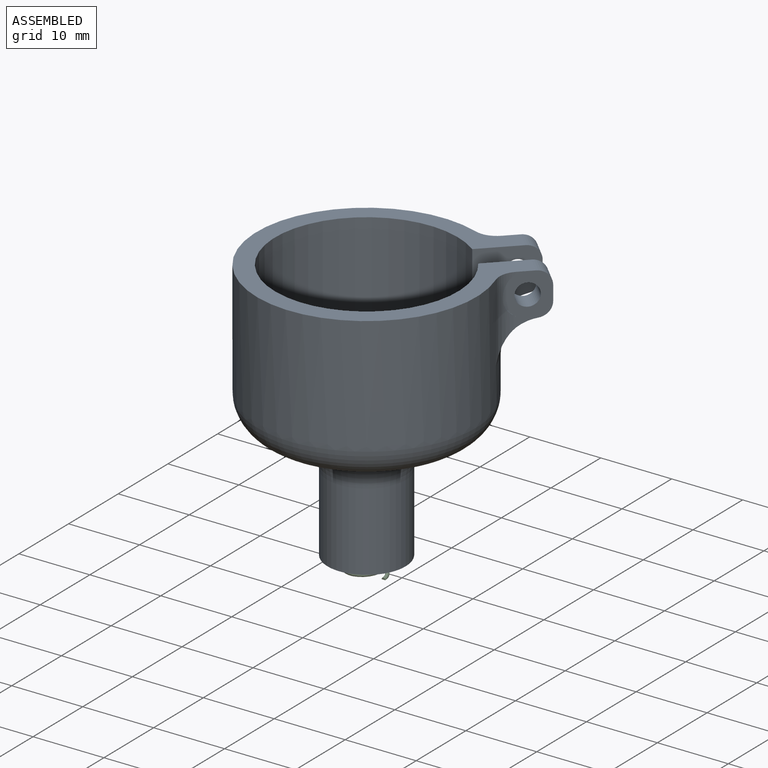
[diagram: assembled view]
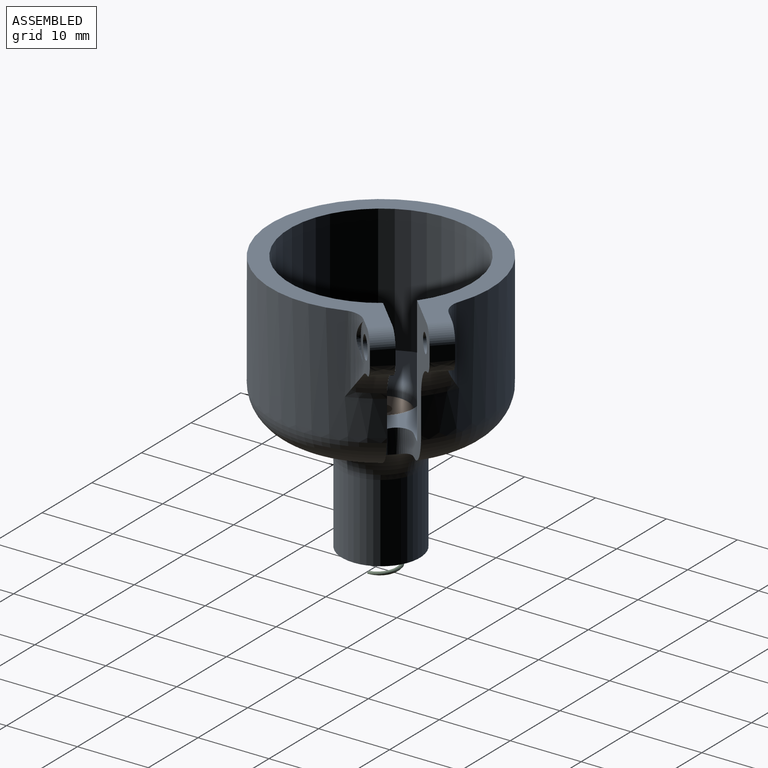
[diagram: assembled view, second angle]
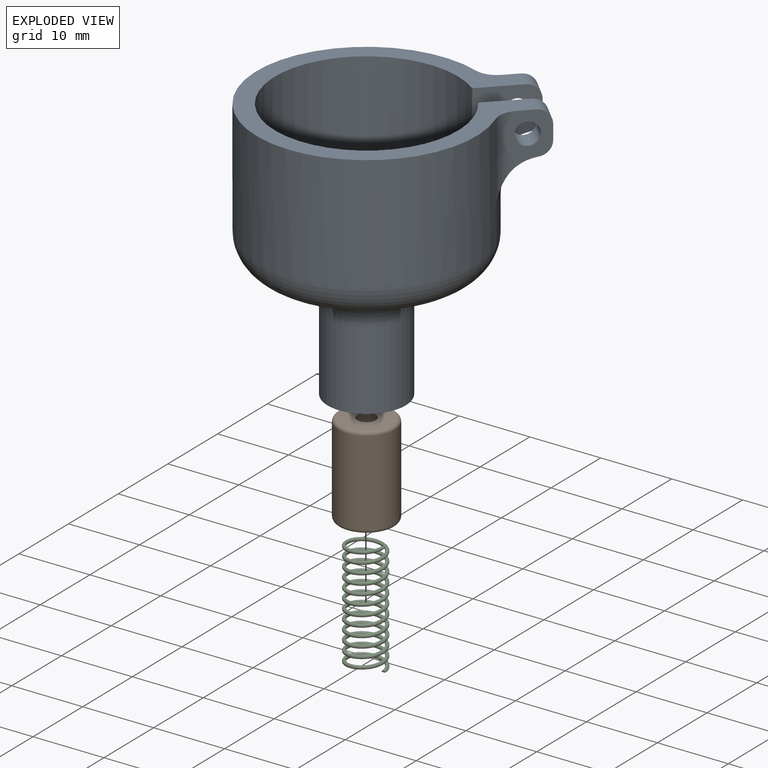
[diagram: exploded view]
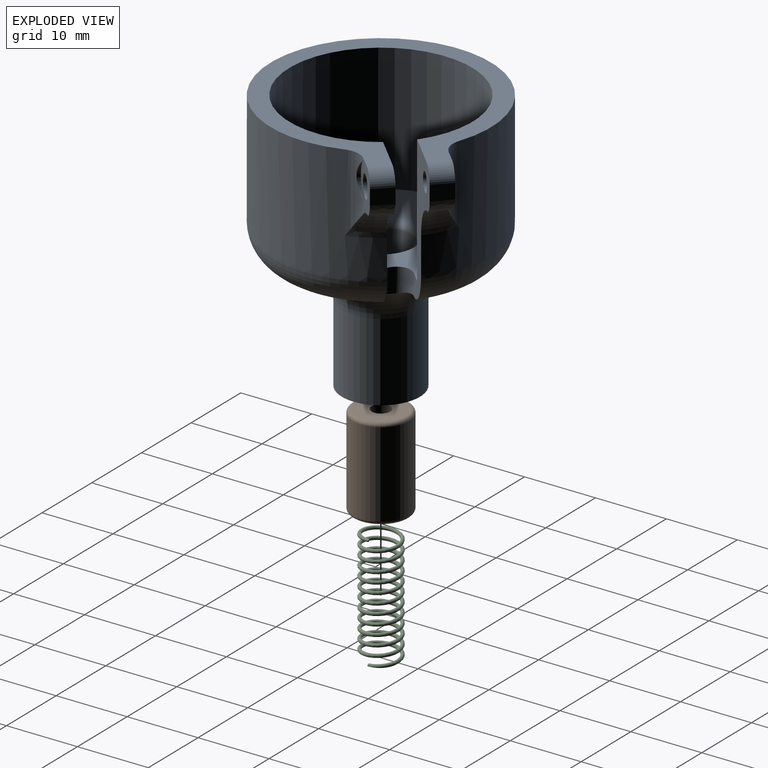
[diagram: exploded view, second angle]
ASSEMBLY  parts=3 mates=2
PART A: 29 faces, bbox 36.6x36.6x37.2 mm
  f0: cylinder r=3mm len=11mm, axis (0,0,1), area 23mm2, adj f1,f2,f26,f27,f28
  f1: cylinder r=3mm len=5.39mm, axis (-0.71,0.71,0), area 0mm2, adj f0,f28
  f2: plane 32.47x32.47mm, normal (0,0,1), area 246.5mm2, adj f0,f3,f7,f9,f10,f20,f21,f25
  f3: cylinder r=3mm len=11mm, axis (0,0,1), area 30.4mm2, adj f2,f4,f7,f26
  f4: torus R=20.5mm, axis (0,0,1), area 25.9mm2, adj f3,f5,f7,f10,f26
  f5: bspline ~4.71x4.51mm, area 8.4mm2, adj f4,f6,f7,f10
  f6: plane 2.14x2.12mm, normal (0.71,0.71,0), area 6.3mm2, adj f5,f7,f9,f10
  f7: plane 7.12x3.11mm, normal (-0.71,0.71,0), area 20.1mm2, adj f2,f3,f4,f5,f6,f8,f9
  f8: cylinder r=1.3mm len=3.96mm, axis (0.71,-0.71,0), area 24.5mm2, adj f7,f10
  f9: cylinder r=2mm len=3.54mm, axis (-0.71,0.71,0), area 9.4mm2, adj f2,f6,f7,f10
  f10: plane 21.16x7.58mm, normal (0.71,-0.71,0), area 88.8mm2, adj f2,f4,f5,f6,f8,f9,f11,f15
  f11: torus R=10.5mm, axis (0,0,-1), area 643.7mm2, adj f10,f12,f15,f21,f26
  f12: torus R=10.5mm, axis (0,0,-1), area 354.9mm2, adj f11,f13,f15
  f13: cylinder r=5.5mm len=11mm, axis (0,0,1), area 380.1mm2, adj f12,f14
  f14: plane 11x11mm, normal (0,0,-1), area 95mm2, adj f13
  f15: cylinder r=2mm len=3.42mm, axis (0,0,-1), area 20.1mm2, adj f10,f11,f12,f16,f21
  f16: plane 25.8x25.8mm, normal (0,0,1), area 420.5mm2, adj f10,f15,f17,f20,f21
  f17: torus R=5.25mm, axis (0,0,1), area 45.5mm2, adj f16,f18
  f18: cylinder r=4.25mm len=16mm, axis (0,0,1), area 427.3mm2, adj f17,f19
  f19: plane 8.5x8.5mm, normal (0,0,1), area 56.7mm2, adj f18
  f20: cylinder r=12.9mm len=25.8mm, axis (0,0,1), area 1386.7mm2, adj f2,f10,f16,f21
  f21: plane 21.16x7.58mm, normal (-0.71,0.71,0), area 86.6mm2, adj f2,f11,f15,f16,f20,f22,f23,f24
  f22: bspline ~4.71x4.51mm, area 8.4mm2, adj f21,f23,f27,f28
  f23: plane 2.14x2.12mm, normal (0.71,0.71,0), area 6.3mm2, adj f21,f22,f25,f28
  f24: cylinder r=1.55mm len=4.31mm, axis (0.71,-0.71,0), area 29.2mm2, adj f21,f28
  f25: cylinder r=2mm len=3.54mm, axis (-0.71,0.71,0), area 9.4mm2, adj f2,f21,f23,f28
  f26: cylinder r=15.5mm len=31mm, axis (0,0,1), area 1385.7mm2, adj f0,f2,f3,f4,f10,f11,f21,f27
  f27: torus R=20.5mm, axis (0,0,1), area 25.9mm2, adj f0,f21,f22,f26,f28
  f28: plane 7.12x4.3mm, normal (0.71,-0.71,0), area 24.3mm2, adj f0,f1,f2,f22,f23,f24,f25,f27
PART B: 8 faces, bbox 8.7x8.7x13 mm
  f0: plane 7x7mm, normal (0,0,1), area 33.2mm2, adj f1,f7
  f1: cylinder r=1.3mm len=4mm, axis (0,0,-1), area 32.7mm2, adj f0,f2
  f2: plane 6x6mm, normal (0,0,-1), area 23mm2, adj f1,f3
  f3: cylinder r=3mm len=9mm, axis (0,0,-1), area 169.6mm2, adj f2,f4
  f4: plane 7x7mm, normal (0,0,-1), area 10.2mm2, adj f3,f6
  f5: cylinder r=4mm len=12mm, axis (0,0,-1), area 301.6mm2, adj f6,f7
  f6: torus R=3.5mm, axis (0,0,1), area 18.8mm2, adj f4,f5
  f7: torus R=3.5mm, axis (0,0,-1), area 18.8mm2, adj f0,f5
PART C: 5 faces, bbox 5.6x5.6x16.6 mm
  f0: plane 0.57x0.32mm, normal (0,1,0), area 0.1mm2, adj f1,f3
  f1: bspline ~16.5x5.48mm, area 294.3mm2, adj f0,f2,f3,f4
  f2: plane 0.57x0.32mm, normal (0,-1,0), area 0.1mm2, adj f1,f4
  f3: plane 2.34x1.81mm, normal (0,0,1), area 1.2mm2, adj f0,f1
  f4: plane 2.34x1.81mm, normal (0,0,-1), area 1.2mm2, adj f1,f2
PLACE A t=(-8.21,6.03,-5.34)mm fixed
PLACE B t=(-8.21,6.03,-37.84)mm
PLACE C t=(-8.3,5.97,-44.84)mm
MATE slider B.f1 <-> A.f4  axis (0,0,-1) through (-8.21,6.03,-37.34)mm
MATE fastened C.f3 <-> B.f2  axis (0,0,1) through (-6.21,4.83,-28.84)mm
